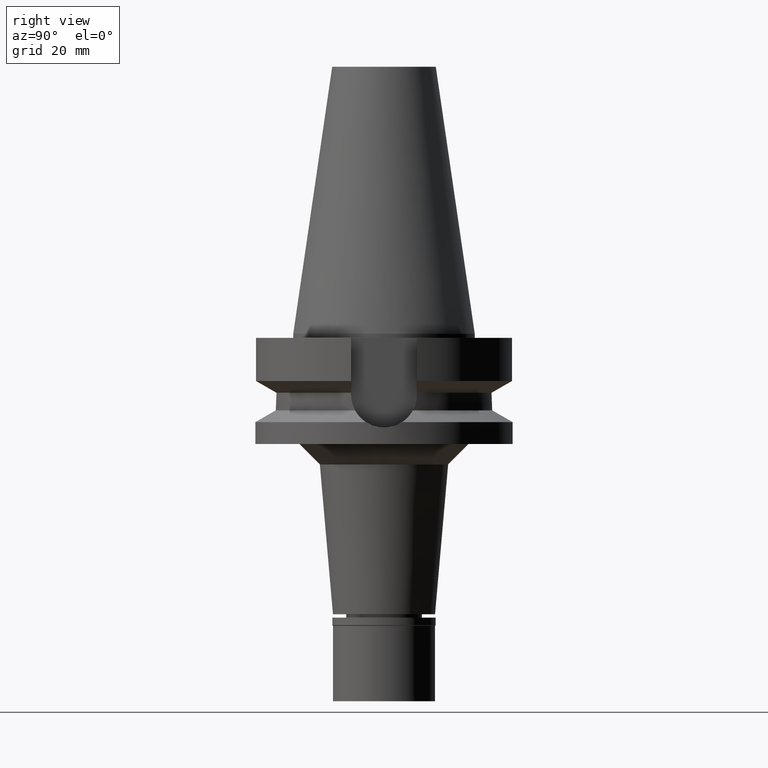
[diagram: clean part render]
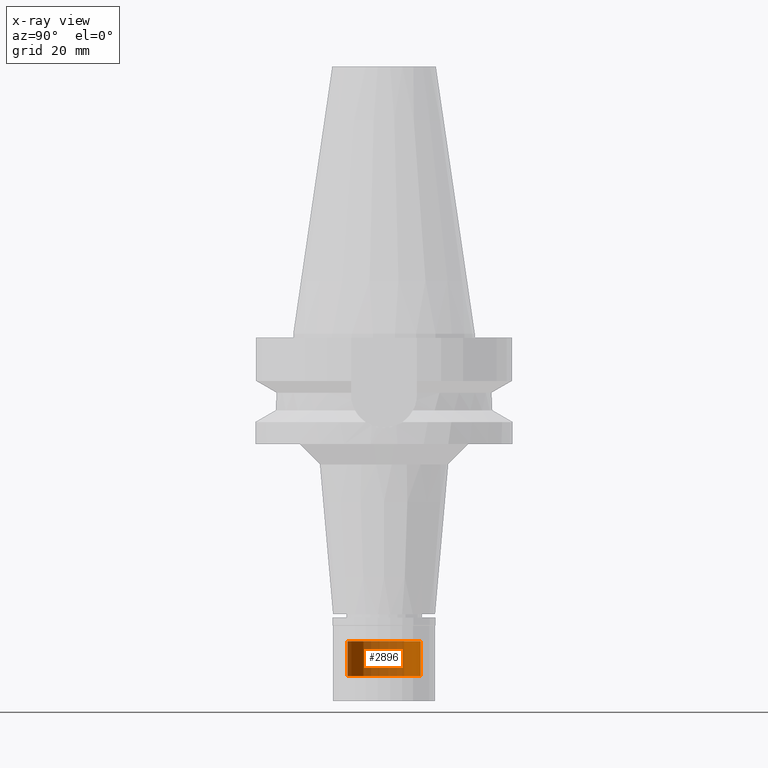
[diagram: x-ray — body ghosted, one internal face saturated and labeled with its STEP entity id]
A machine part, right view, then the same camera in x-ray: the body is ghosted and one INTERNAL B-rep face — a face not visible from any outside direction — is saturated and labeled: STEP entity #2896.
In plain terms, the highlighted cylindrical surface (partial cylindrical patch) has radius 9 mm, axis along (0, 0, -1).
Its self-contained STEP definition (entity closure, byte-faithful):
#16 = CARTESIAN_POINT ( 'NONE',  ( 0.0000000000000000000, 2.116924457005999917E-14, -75.30000000000001137 ) ) ;
#23 = EDGE_CURVE ( 'NONE', #528, #2909, #173, .T. ) ;
#46 = CARTESIAN_POINT ( 'NONE',  ( 0.0000000000000000000, 9.000000000000000000, -75.30000000000001137 ) ) ;
#80 = EDGE_CURVE ( 'NONE', #1476, #1176, #2276, .T. ) ;
#173 = CIRCLE ( 'NONE', #1153, 9.000000000000000000 ) ;
#249 = CARTESIAN_POINT ( 'NONE',  ( 0.0000000000000000000, 2.116924457005999917E-14, 72.85999999999999943 ) ) ;
#369 = CARTESIAN_POINT ( 'NONE',  ( 0.0000000000000000000, -9.000000000000000000, -75.30000000000001137 ) ) ;
#453 = DIRECTION ( 'NONE',  ( 0.0000000000000000000, -1.000000000000000000, 0.0000000000000000000 ) ) ;
#528 = VERTEX_POINT ( 'NONE', #2019 ) ;
#605 = CARTESIAN_POINT ( 'NONE',  ( 0.0000000000000000000, 9.000000000000000000, -83.79999999999999716 ) ) ;
#613 = EDGE_CURVE ( 'NONE', #528, #1176, #1770, .T. ) ;
#881 = AXIS2_PLACEMENT_3D ( 'NONE', #249, #2904, #453 ) ;
#988 = EDGE_LOOP ( 'NONE', ( #1186, #1941, #1339, #2285 ) ) ;
#1017 = DIRECTION ( 'NONE',  ( 0.0000000000000000000, 0.0000000000000000000, -1.000000000000000000 ) ) ;
#1153 = AXIS2_PLACEMENT_3D ( 'NONE', #16, #1961, #1747 ) ;
#1176 = VERTEX_POINT ( 'NONE', #1438 ) ;
#1186 = ORIENTED_EDGE ( 'NONE', *, *, #80, .T. ) ;
#1272 = LINE ( 'NONE', #46, #1661 ) ;
#1339 = ORIENTED_EDGE ( 'NONE', *, *, #23, .T. ) ;
#1438 = CARTESIAN_POINT ( 'NONE',  ( 0.0000000000000000000, -9.000000000000000000, -83.79999999999999716 ) ) ;
#1476 = VERTEX_POINT ( 'NONE', #605 ) ;
#1488 = DIRECTION ( 'NONE',  ( 0.0000000000000000000, 0.0000000000000000000, 1.000000000000000000 ) ) ;
#1554 = EDGE_CURVE ( 'NONE', #2909, #1476, #1272, .T. ) ;
#1661 = VECTOR ( 'NONE', #1017, 1000.000000000000000 ) ;
#1721 = CARTESIAN_POINT ( 'NONE',  ( 0.0000000000000000000, 2.116924457005999917E-14, -83.79999999999999716 ) ) ;
#1747 = DIRECTION ( 'NONE',  ( 0.0000000000000000000, -1.000000000000000000, 0.0000000000000000000 ) ) ;
#1770 = LINE ( 'NONE', #369, #3094 ) ;
#1832 = DIRECTION ( 'NONE',  ( 0.0000000000000000000, 0.0000000000000000000, -1.000000000000000000 ) ) ;
#1941 = ORIENTED_EDGE ( 'NONE', *, *, #613, .F. ) ;
#1961 = DIRECTION ( 'NONE',  ( 0.0000000000000000000, 0.0000000000000000000, -1.000000000000000000 ) ) ;
#2019 = CARTESIAN_POINT ( 'NONE',  ( 0.0000000000000000000, -9.000000000000000000, -75.30000000000001137 ) ) ;
#2276 = CIRCLE ( 'NONE', #2980, 9.000000000000000000 ) ;
#2285 = ORIENTED_EDGE ( 'NONE', *, *, #1554, .T. ) ;
#2405 = CYLINDRICAL_SURFACE ( 'NONE', #881, 9.000000000000000000 ) ;
#2421 = CARTESIAN_POINT ( 'NONE',  ( 0.0000000000000000000, 9.000000000000000000, -75.30000000000001137 ) ) ;
#2442 = FACE_OUTER_BOUND ( 'NONE', #988, .T. ) ;
#2708 = DIRECTION ( 'NONE',  ( 0.0000000000000000000, 1.000000000000000000, 0.0000000000000000000 ) ) ;
#2896 = ADVANCED_FACE ( 'NONE', ( #2442 ), #2405, .T. ) ;
#2904 = DIRECTION ( 'NONE',  ( 0.0000000000000000000, 0.0000000000000000000, -1.000000000000000000 ) ) ;
#2909 = VERTEX_POINT ( 'NONE', #2421 ) ;
#2980 = AXIS2_PLACEMENT_3D ( 'NONE', #1721, #1488, #2708 ) ;
#3094 = VECTOR ( 'NONE', #1832, 1000.000000000000000 ) ;